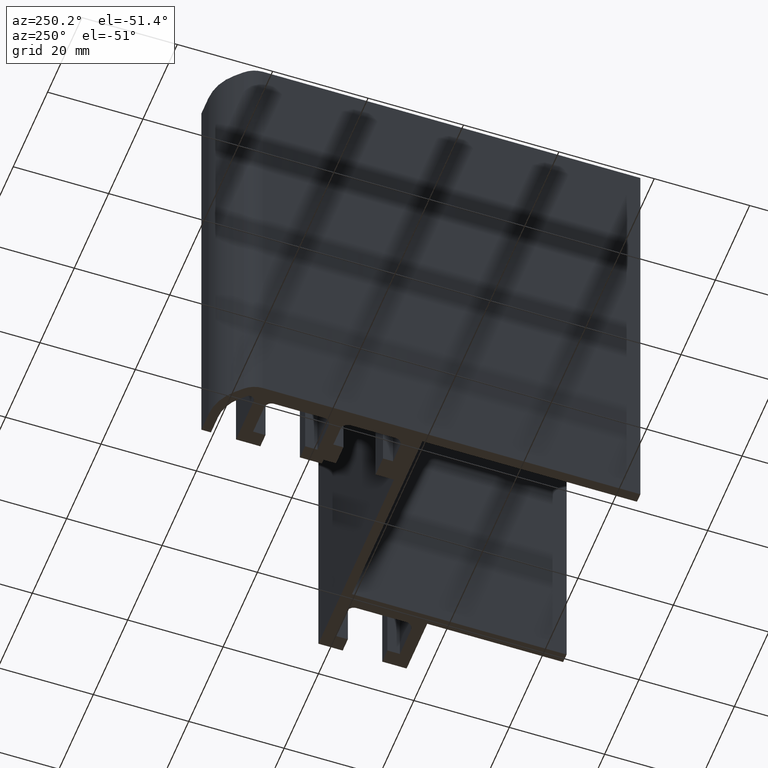
[diagram: clean part render]
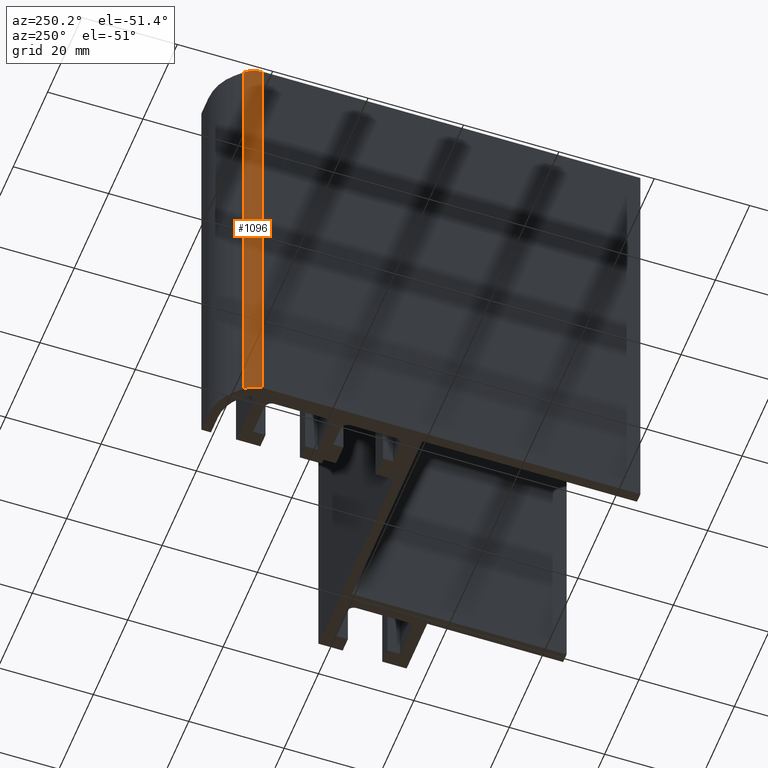
[diagram: same view with one face highlighted and labeled with its STEP entity id]
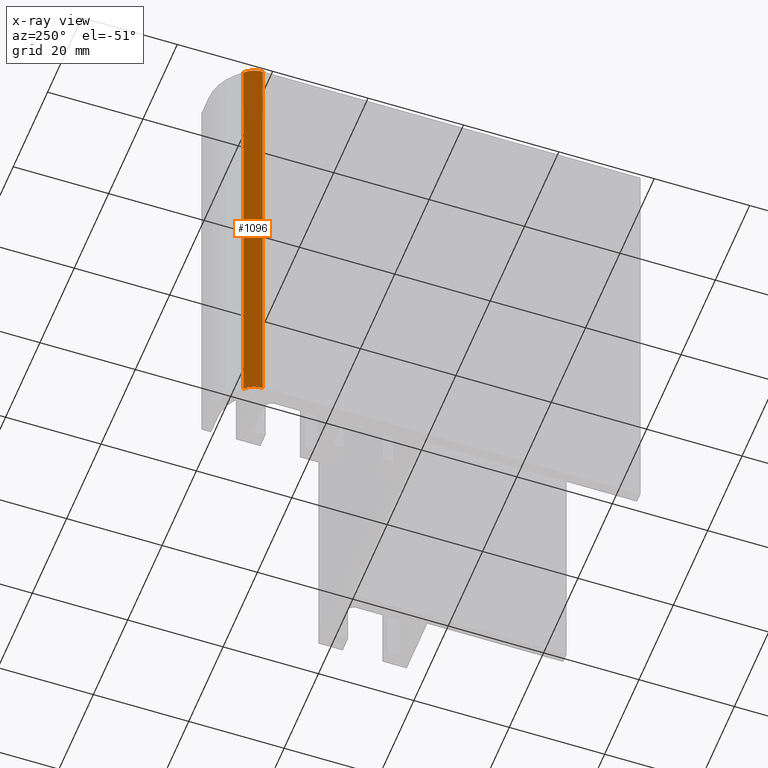
[diagram: x-ray of the same camera — body ghosted, the highlighted face saturated]
A machine part, auxiliary view. The second image highlights one B-rep face of the part: STEP entity #1096.
The next image is the same camera in x-ray: the body ghosted, the highlighted face saturated — about 0% of this face is hidden behind the body in this view.
In plain terms, the highlighted cylindrical surface (edge-blend (fillet) strip) has radius 5 mm, axis along (0, 0, 1).
Its self-contained STEP definition (entity closure, byte-faithful):
#23=CIRCLE('',#1162,5.);
#24=CIRCLE('',#1163,5.);
#39=CYLINDRICAL_SURFACE('',#1161,5.);
#80=FACE_OUTER_BOUND('',#135,.T.);
#135=EDGE_LOOP('',(#838,#839,#840,#841));
#252=LINE('',#1697,#391);
#253=LINE('',#1703,#392);
#391=VECTOR('',#1378,100.);
#392=VECTOR('',#1385,100.);
#503=VERTEX_POINT('',#1693);
#504=VERTEX_POINT('',#1695);
#505=VERTEX_POINT('',#1699);
#506=VERTEX_POINT('',#1701);
#644=EDGE_CURVE('',#503,#504,#252,.T.);
#645=EDGE_CURVE('',#505,#503,#23,.T.);
#646=EDGE_CURVE('',#506,#504,#24,.T.);
#647=EDGE_CURVE('',#505,#506,#253,.T.);
#838=ORIENTED_EDGE('',*,*,#645,.T.);
#839=ORIENTED_EDGE('',*,*,#644,.T.);
#840=ORIENTED_EDGE('',*,*,#646,.F.);
#841=ORIENTED_EDGE('',*,*,#647,.F.);
#1096=ADVANCED_FACE('',(#80),#39,.T.);
#1161=AXIS2_PLACEMENT_3D('',#1698,#1379,#1380);
#1162=AXIS2_PLACEMENT_3D('',#1700,#1381,#1382);
#1163=AXIS2_PLACEMENT_3D('',#1702,#1383,#1384);
#1378=DIRECTION('',(0.,0.,1.));
#1379=DIRECTION('center_axis',(0.,0.,1.));
#1380=DIRECTION('ref_axis',(-0.707106781186551,0.707106781186544,0.));
#1381=DIRECTION('center_axis',(0.,0.,1.));
#1382=DIRECTION('ref_axis',(-0.707106781186551,0.707106781186544,0.));
#1383=DIRECTION('center_axis',(0.,0.,1.));
#1384=DIRECTION('ref_axis',(-0.707106781186551,0.707106781186544,0.));
#1385=DIRECTION('',(0.,0.,1.));
#1693=CARTESIAN_POINT('',(-22.4999999999999,34.1789321881345,0.));
#1695=CARTESIAN_POINT('',(-22.4999999999999,34.1789321881345,100.));
#1697=CARTESIAN_POINT('',(-22.4999999999999,34.1789321881345,0.));
#1698=CARTESIAN_POINT('Origin',(-17.4999999999999,34.1789321881345,0.));
#1699=CARTESIAN_POINT('',(-21.0355339059326,37.7144660940672,0.));
#1700=CARTESIAN_POINT('Origin',(-17.4999999999999,34.1789321881345,0.));
#1701=CARTESIAN_POINT('',(-21.0355339059326,37.7144660940672,100.));
#1702=CARTESIAN_POINT('Origin',(-17.4999999999999,34.1789321881345,100.));
#1703=CARTESIAN_POINT('',(-21.0355339059326,37.7144660940672,0.));